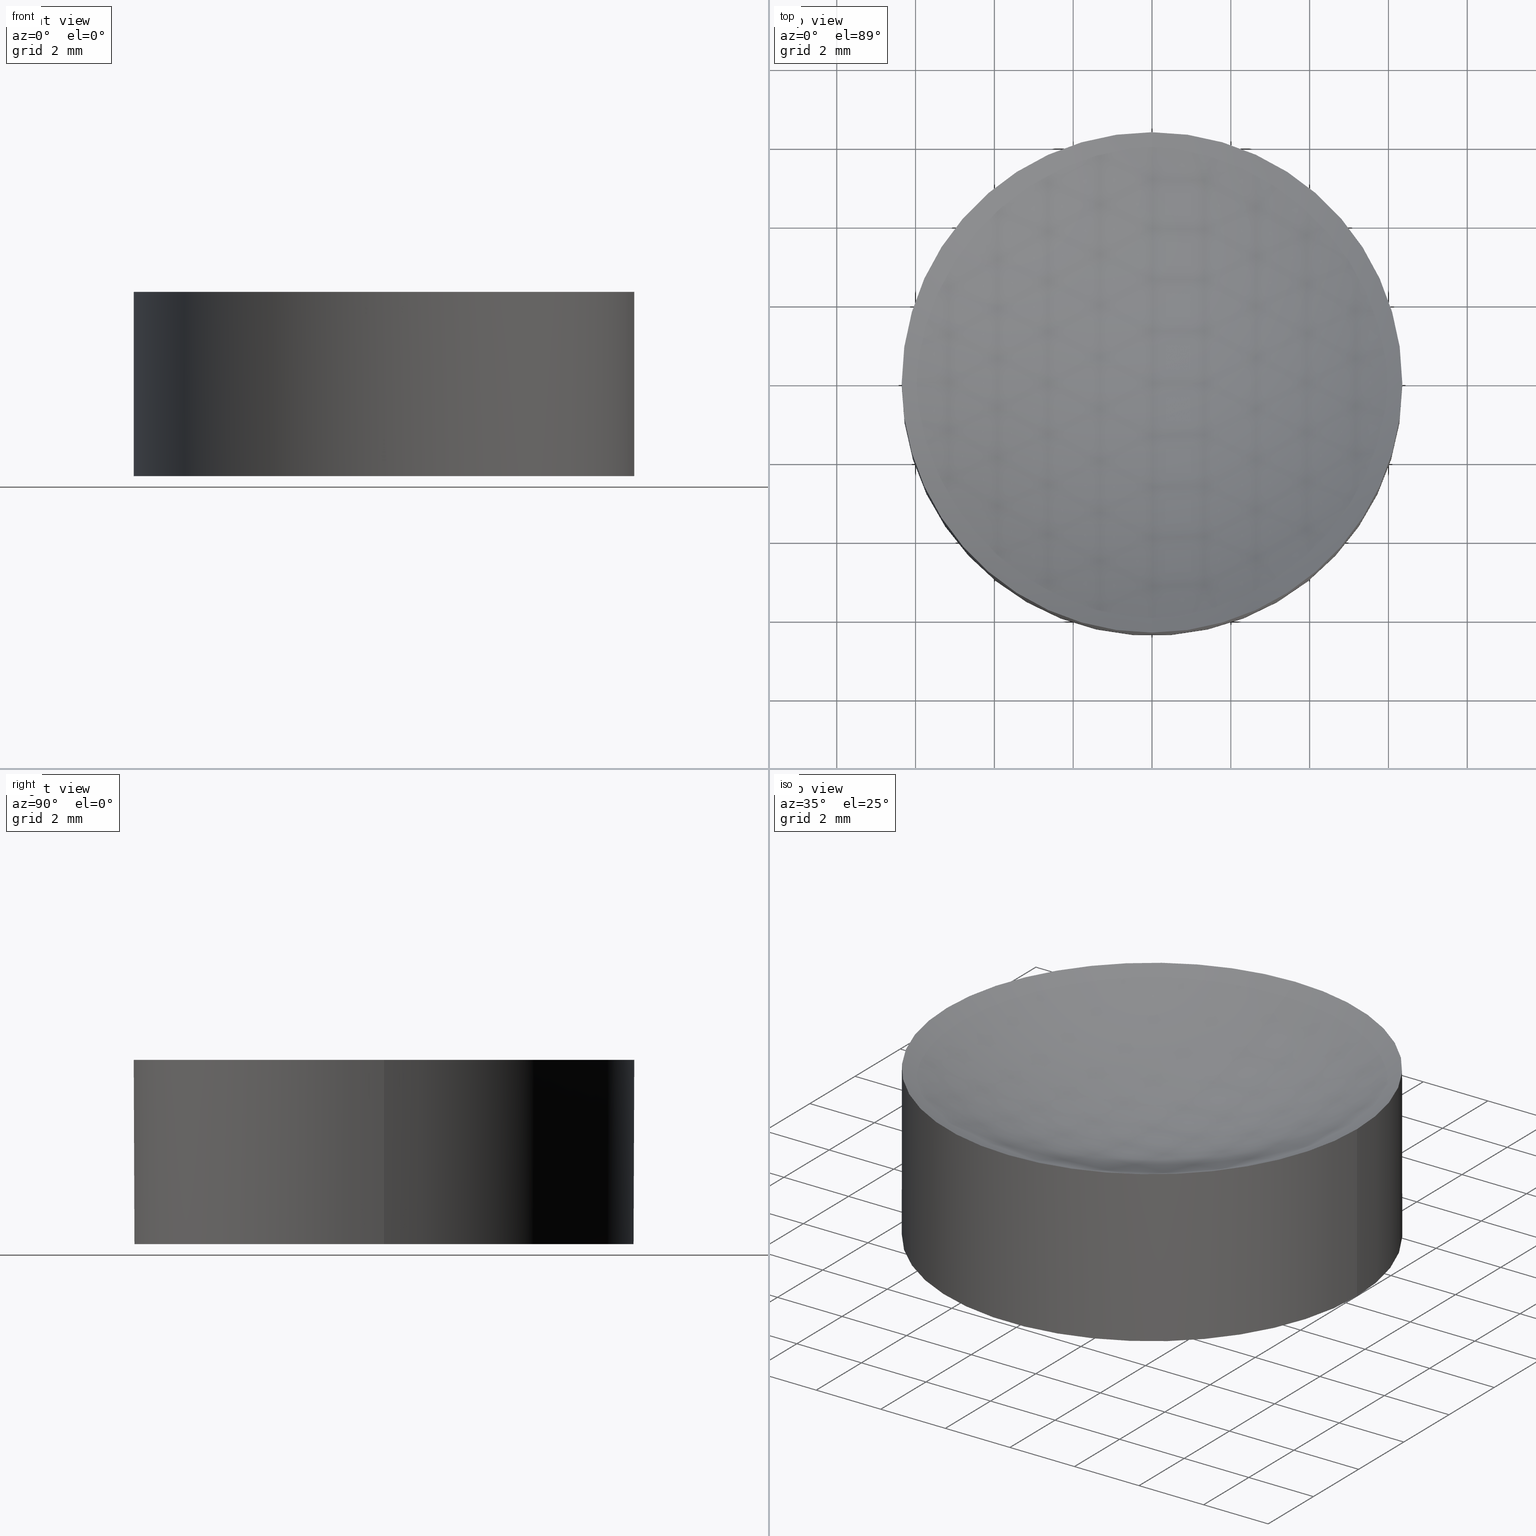
[diagram: canonical four-view strip — front | top / right | iso, engineering-drawing reading convention]
A machine part, canonical four-view strip (front | top / right | iso — engineering-drawing reading convention). The complete STEP part file that produces these views, byte-faithful:
ISO-10303-21;
HEADER;
FILE_DESCRIPTION (( 'STEP AP214' ),
    '1' );
FILE_NAME ('3430-E0W.STEP',
    '2009-12-21T16:59:00',
    ( ' ' ),
    ( ' ' ),
    'SwSTEP 2.0',
    'SolidWorks 2009',
    '' );
FILE_SCHEMA (( 'AUTOMOTIVE_DESIGN' ));
ENDSEC;

DATA;
#1 = PRESENTATION_LAYER_ASSIGNMENT (  '', '', ( #2 ) ) ;
#2 = STYLED_ITEM ( 'NONE', ( #3 ), #106 ) ;
#3 = PRESENTATION_STYLE_ASSIGNMENT (( #4 ) ) ;
#4 = SURFACE_STYLE_USAGE ( .BOTH. , #5 ) ;
#5 = SURFACE_SIDE_STYLE ('',( #6 ) ) ;
#6 = SURFACE_STYLE_FILL_AREA ( #7 ) ;
#7 = FILL_AREA_STYLE ('',( #149 ) ) ;
#8 = COLOUR_RGB ( '',0.9568627450980391500, 0.9490196078431372100, 0.9607843137254902200 ) ;
#9 = FACE_OUTER_BOUND ( 'NONE', #157, .T. ) ;
#10 = DIRECTION ( 'NONE',  ( 1.000000000000000000, 0.0000000000000000000, 0.0000000000000000000 ) ) ;
#11 = DIRECTION ( 'NONE',  ( -0.0000000000000000000, -0.0000000000000000000, 1.000000000000000000 ) ) ;
#12 = CARTESIAN_POINT ( 'NONE',  ( 0.0000000000000000000, 0.0000000000000000000, 2.338553407212048600 ) ) ;
#13 = AXIS2_PLACEMENT_3D ( 'NONE', #12, #11, #10 ) ;
#14 = DIRECTION ( 'NONE',  ( 1.000000000000000000, 0.0000000000000000000, 0.0000000000000000000 ) ) ;
#15 = DIRECTION ( 'NONE',  ( -0.0000000000000000000, -0.0000000000000000000, 1.000000000000000000 ) ) ;
#16 = CARTESIAN_POINT ( 'NONE',  ( 0.0000000000000000000, 0.0000000000000000000, 8.178599863217275600 ) ) ;
#17 = ORIENTED_EDGE ( 'NONE', *, *, #29, .T. ) ;
#18 = UNCERTAINTY_MEASURE_WITH_UNIT (LENGTH_MEASURE( 1.000000000000000100E-005 ), #131, 'distance_accuracy_value', 'NONE');
#19 = ORIENTED_EDGE ( 'NONE', *, *, #20, .F. ) ;
#20 = EDGE_CURVE ( 'NONE', #39, #96, #141, .T. ) ;
#21 = MANIFOLD_SOLID_BREP ( 'NONE', #107 ) ;
#22 = VERTEX_POINT ( 'NONE', #119 ) ;
#23 = ORIENTED_EDGE ( 'NONE', *, *, #105, .T. ) ;
#24 = DIRECTION ( 'NONE',  ( 1.000000000000000000, 0.0000000000000000000, 0.0000000000000000000 ) ) ;
#25 = DIRECTION ( 'NONE',  ( -0.0000000000000000000, -0.0000000000000000000, 1.000000000000000000 ) ) ;
#26 = CARTESIAN_POINT ( 'NONE',  ( 0.0000000000000000000, 0.0000000000000000000, -2.338553407212048600 ) ) ;
#27 = AXIS2_PLACEMENT_3D ( 'NONE', #26, #25, #24 ) ;
#28 = CARTESIAN_POINT ( 'NONE',  ( 0.0000000000000000000, 7.874218855077883200E-016, 0.6614465927879519300 ) ) ;
#29 = EDGE_CURVE ( 'NONE', #49, #163, #118, .T. ) ;
#30 =( NAMED_UNIT ( * ) PLANE_ANGLE_UNIT ( ) SI_UNIT ( $, .RADIAN. ) );
#31 =( LENGTH_UNIT ( ) NAMED_UNIT ( * ) SI_UNIT ( .MILLI., .METRE. ) );
#32 = DIRECTION ( 'NONE',  ( 0.0000000000000000000, 0.0000000000000000000, -1.000000000000000000 ) ) ;
#33 = DIRECTION ( 'NONE',  ( 1.000000000000000000, 0.0000000000000000000, 0.0000000000000000000 ) ) ;
#34 = CARTESIAN_POINT ( 'NONE',  ( 0.0000000000000000000, 0.0000000000000000000, 13.52144659278794800 ) ) ;
#35 = AXIS2_PLACEMENT_3D ( 'NONE', #34, #33, #32 ) ;
#36 = COLOUR_RGB ( '',0.7960784313725489700, 0.8235294117647058400, 0.9372549019607843100 ) ;
#37 = UNCERTAINTY_MEASURE_WITH_UNIT (LENGTH_MEASURE( 1.000000000000000100E-005 ), #31, 'distance_accuracy_value', 'NONE');
#38 =( NAMED_UNIT ( * ) SI_UNIT ( $, .STERADIAN. ) SOLID_ANGLE_UNIT ( ) );
#39 = VERTEX_POINT ( 'NONE', #28 ) ;
#40 = STYLED_ITEM ( 'NONE', ( #41 ), #21 ) ;
#41 = PRESENTATION_STYLE_ASSIGNMENT (( #42 ) ) ;
#42 = SURFACE_STYLE_USAGE ( .BOTH. , #43 ) ;
#43 = SURFACE_SIDE_STYLE ('',( #44 ) ) ;
#44 = SURFACE_STYLE_FILL_AREA ( #45 ) ;
#45 = FILL_AREA_STYLE ('',( #137 ) ) ;
#46 =( NAMED_UNIT ( * ) PLANE_ANGLE_UNIT ( ) SI_UNIT ( $, .RADIAN. ) );
#47 =( LENGTH_UNIT ( ) NAMED_UNIT ( * ) SI_UNIT ( .MILLI., .METRE. ) );
#48 = MECHANICAL_DESIGN_GEOMETRIC_PRESENTATION_REPRESENTATION (  '', ( #2 ), #91 ) ;
#49 = VERTEX_POINT ( 'NONE', #146 ) ;
#50 = ORIENTED_EDGE ( 'NONE', *, *, #52, .T. ) ;
#51 = ORIENTED_EDGE ( 'NONE', *, *, #52, .F. ) ;
#52 = EDGE_CURVE ( 'NONE', #96, #156, #115, .T. ) ;
#53 = ORIENTED_EDGE ( 'NONE', *, *, #143, .T. ) ;
#54 = ORIENTED_EDGE ( 'NONE', *, *, #105, .F. ) ;
#55 = MECHANICAL_DESIGN_GEOMETRIC_PRESENTATION_REPRESENTATION (  '', ( #57 ), #136 ) ;
#56 = PRESENTATION_LAYER_ASSIGNMENT (  '', '', ( #57 ) ) ;
#57 = STYLED_ITEM ( 'NONE', ( #58 ), #92 ) ;
#58 = PRESENTATION_STYLE_ASSIGNMENT (( #59 ) ) ;
#59 = SURFACE_STYLE_USAGE ( .BOTH. , #60 ) ;
#60 = SURFACE_SIDE_STYLE ('',( #61 ) ) ;
#61 = SURFACE_STYLE_FILL_AREA ( #62 ) ;
#62 = FILL_AREA_STYLE ('',( #109 ) ) ;
#63 =( NAMED_UNIT ( * ) PLANE_ANGLE_UNIT ( ) SI_UNIT ( $, .RADIAN. ) );
#64 =( LENGTH_UNIT ( ) NAMED_UNIT ( * ) SI_UNIT ( .MILLI., .METRE. ) );
#65 = MECHANICAL_DESIGN_GEOMETRIC_PRESENTATION_REPRESENTATION (  '', ( #67 ), #168 ) ;
#66 = PRESENTATION_LAYER_ASSIGNMENT (  '', '', ( #67 ) ) ;
#67 = STYLED_ITEM ( 'NONE', ( #68 ), #139 ) ;
#68 = PRESENTATION_STYLE_ASSIGNMENT (( #69 ) ) ;
#69 = SURFACE_STYLE_USAGE ( .BOTH. , #70 ) ;
#70 = SURFACE_SIDE_STYLE ('',( #71 ) ) ;
#71 = SURFACE_STYLE_FILL_AREA ( #72 ) ;
#72 = FILL_AREA_STYLE ('',( #80 ) ) ;
#73 = COLOUR_RGB ( '',0.9568627450980391500, 0.9490196078431372100, 0.9607843137254902200 ) ;
#74 = FACE_OUTER_BOUND ( 'NONE', #98, .T. ) ;
#75 = DIRECTION ( 'NONE',  ( 1.000000000000000000, 0.0000000000000000000, 0.0000000000000000000 ) ) ;
#76 = DIRECTION ( 'NONE',  ( -0.0000000000000000000, -0.0000000000000000000, 1.000000000000000000 ) ) ;
#77 = CARTESIAN_POINT ( 'NONE',  ( 0.0000000000000000000, 0.0000000000000000000, 2.338553407212048600 ) ) ;
#78 = AXIS2_PLACEMENT_3D ( 'NONE', #77, #76, #75 ) ;
#79 = CIRCLE ( 'NONE', #78, 6.349999999999998800 ) ;
#80 = FILL_AREA_STYLE_COLOUR ( '', #73 ) ;
#81 = DIRECTION ( 'NONE',  ( 1.000000000000000000, 0.0000000000000000000, 0.0000000000000000000 ) ) ;
#82 = DIRECTION ( 'NONE',  ( -0.0000000000000000000, -0.0000000000000000000, 1.000000000000000000 ) ) ;
#83 = CARTESIAN_POINT ( 'NONE',  ( 0.0000000000000000000, 0.0000000000000000000, 2.338553407212048600 ) ) ;
#84 = AXIS2_PLACEMENT_3D ( 'NONE', #83, #82, #81 ) ;
#85 = CIRCLE ( 'NONE', #84, 6.349999999999998800 ) ;
#86 = DIRECTION ( 'NONE',  ( 1.000000000000000000, 0.0000000000000000000, 0.0000000000000000000 ) ) ;
#87 = DIRECTION ( 'NONE',  ( 0.0000000000000000000, -0.0000000000000000000, 1.000000000000000000 ) ) ;
#88 = CARTESIAN_POINT ( 'NONE',  ( 0.0000000000000000000, 5.510910596163088600E-016, -2.338553407212049100 ) ) ;
#89 = AXIS2_PLACEMENT_3D ( 'NONE', #88, #87, #86 ) ;
#90 = PLANE ( 'NONE',  #89 ) ;
#91 =( GEOMETRIC_REPRESENTATION_CONTEXT ( 3 ) GLOBAL_UNCERTAINTY_ASSIGNED_CONTEXT ( ( #116 ) ) GLOBAL_UNIT_ASSIGNED_CONTEXT ( ( #47, #46, #117 ) ) REPRESENTATION_CONTEXT ( 'NONE', 'WORKASPACE' ) );
#92 = ADVANCED_FACE ( 'NONE', ( #145 ), #93, .T. ) ;
#93 = CYLINDRICAL_SURFACE ( 'NONE', #95, 6.349999999999999600 ) ;
#94 = CARTESIAN_POINT ( 'NONE',  ( 0.0000000000000000000, 6.349999999999999600, 2.338553407212049100 ) ) ;
#95 = AXIS2_PLACEMENT_3D ( 'NONE', #16, #15, #14 ) ;
#96 = VERTEX_POINT ( 'NONE', #94 ) ;
#97 = EDGE_CURVE ( 'NONE', #163, #49, #129, .T. ) ;
#98 = EDGE_LOOP ( 'NONE', ( #103, #104, #50, #23 ) ) ;
#99 = ORIENTED_EDGE ( 'NONE', *, *, #100, .T. ) ;
#100 = EDGE_CURVE ( 'NONE', #39, #154, #124, .T. ) ;
#101 = EDGE_LOOP ( 'NONE', ( #19, #99, #155, #138 ) ) ;
#102 = ORIENTED_EDGE ( 'NONE', *, *, #120, .F. ) ;
#103 = ORIENTED_EDGE ( 'NONE', *, *, #100, .F. ) ;
#104 = ORIENTED_EDGE ( 'NONE', *, *, #20, .T. ) ;
#105 = EDGE_CURVE ( 'NONE', #156, #154, #148, .T. ) ;
#106 = ADVANCED_FACE ( 'NONE', ( #9 ), #90, .F. ) ;
#107 = CLOSED_SHELL ( 'NONE', ( #160, #144, #139, #106, #92 ) ) ;
#108 = ORIENTED_EDGE ( 'NONE', *, *, #97, .T. ) ;
#109 = FILL_AREA_STYLE_COLOUR ( '', #110 ) ;
#110 = COLOUR_RGB ( '',0.9568627450980391500, 0.9490196078431372100, 0.9607843137254902200 ) ;
#111 = DIRECTION ( 'NONE',  ( 1.000000000000000000, 0.0000000000000000000, 0.0000000000000000000 ) ) ;
#112 = DIRECTION ( 'NONE',  ( -0.0000000000000000000, -0.0000000000000000000, 1.000000000000000000 ) ) ;
#113 = CARTESIAN_POINT ( 'NONE',  ( 0.0000000000000000000, 0.0000000000000000000, 2.338553407212048600 ) ) ;
#114 = AXIS2_PLACEMENT_3D ( 'NONE', #113, #112, #111 ) ;
#115 = CIRCLE ( 'NONE', #114, 6.349999999999998800 ) ;
#116 = UNCERTAINTY_MEASURE_WITH_UNIT (LENGTH_MEASURE( 1.000000000000000100E-005 ), #47, 'distance_accuracy_value', 'NONE');
#117 =( NAMED_UNIT ( * ) SI_UNIT ( $, .STERADIAN. ) SOLID_ANGLE_UNIT ( ) );
#118 = CIRCLE ( 'NONE', #27, 6.350000000000000500 ) ;
#119 = CARTESIAN_POINT ( 'NONE',  ( 6.349999999999998800, 0.0000000000000000000, 2.338553407212048600 ) ) ;
#120 = EDGE_CURVE ( 'NONE', #22, #96, #85, .T. ) ;
#121 = ORIENTED_EDGE ( 'NONE', *, *, #143, .F. ) ;
#122 = EDGE_CURVE ( 'NONE', #154, #22, #79, .T. ) ;
#123 =( NAMED_UNIT ( * ) SI_UNIT ( $, .STERADIAN. ) SOLID_ANGLE_UNIT ( ) );
#124 = CIRCLE ( 'NONE', #153, 12.85999999999999600 ) ;
#125 = DIRECTION ( 'NONE',  ( 1.000000000000000000, 0.0000000000000000000, 0.0000000000000000000 ) ) ;
#126 = DIRECTION ( 'NONE',  ( -0.0000000000000000000, -0.0000000000000000000, 1.000000000000000000 ) ) ;
#127 = CARTESIAN_POINT ( 'NONE',  ( 0.0000000000000000000, 0.0000000000000000000, -2.338553407212048600 ) ) ;
#128 = AXIS2_PLACEMENT_3D ( 'NONE', #127, #126, #125 ) ;
#129 = CIRCLE ( 'NONE', #128, 6.350000000000000500 ) ;
#130 =( NAMED_UNIT ( * ) PLANE_ANGLE_UNIT ( ) SI_UNIT ( $, .RADIAN. ) );
#131 =( LENGTH_UNIT ( ) NAMED_UNIT ( * ) SI_UNIT ( .MILLI., .METRE. ) );
#132 = MECHANICAL_DESIGN_GEOMETRIC_PRESENTATION_REPRESENTATION (  '', ( #40 ), #147 ) ;
#133 = PRESENTATION_LAYER_ASSIGNMENT (  '', '', ( #40 ) ) ;
#134 = EDGE_LOOP ( 'NONE', ( #135, #108, #53, #142, #54 ) ) ;
#135 = ORIENTED_EDGE ( 'NONE', *, *, #161, .F. ) ;
#136 =( GEOMETRIC_REPRESENTATION_CONTEXT ( 3 ) GLOBAL_UNCERTAINTY_ASSIGNED_CONTEXT ( ( #37 ) ) GLOBAL_UNIT_ASSIGNED_CONTEXT ( ( #31, #30, #38 ) ) REPRESENTATION_CONTEXT ( 'NONE', 'WORKASPACE' ) );
#137 = FILL_AREA_STYLE_COLOUR ( '', #36 ) ;
#138 = ORIENTED_EDGE ( 'NONE', *, *, #120, .T. ) ;
#139 = ADVANCED_FACE ( 'NONE', ( #74 ), #169, .F. ) ;
#140 = EDGE_LOOP ( 'NONE', ( #17, #162, #51, #102, #121 ) ) ;
#141 = CIRCLE ( 'NONE', #35, 12.85999999999999600 ) ;
#142 = ORIENTED_EDGE ( 'NONE', *, *, #122, .F. ) ;
#143 = EDGE_CURVE ( 'NONE', #49, #22, #195, .T. ) ;
#144 = ADVANCED_FACE ( 'NONE', ( #182 ), #223, .F. ) ;
#145 = FACE_OUTER_BOUND ( 'NONE', #134, .T. ) ;
#146 = CARTESIAN_POINT ( 'NONE',  ( 6.350000000000000500, 0.0000000000000000000, -2.338553407212048600 ) ) ;
#147 =( GEOMETRIC_REPRESENTATION_CONTEXT ( 3 ) GLOBAL_UNCERTAINTY_ASSIGNED_CONTEXT ( ( #18 ) ) GLOBAL_UNIT_ASSIGNED_CONTEXT ( ( #131, #130, #123 ) ) REPRESENTATION_CONTEXT ( 'NONE', 'WORKASPACE' ) );
#148 = CIRCLE ( 'NONE', #13, 6.349999999999998800 ) ;
#149 = FILL_AREA_STYLE_COLOUR ( '', #8 ) ;
#150 = DIRECTION ( 'NONE',  ( -1.224606353822377300E-016, -1.000000000000000000, 0.0000000000000000000 ) ) ;
#151 = DIRECTION ( 'NONE',  ( -1.000000000000000000, 1.224606353822377300E-016, 0.0000000000000000000 ) ) ;
#152 = CARTESIAN_POINT ( 'NONE',  ( 0.0000000000000000000, 0.0000000000000000000, 13.52144659278794800 ) ) ;
#153 = AXIS2_PLACEMENT_3D ( 'NONE', #152, #151, #150 ) ;
#154 = VERTEX_POINT ( 'NONE', #227 ) ;
#155 = ORIENTED_EDGE ( 'NONE', *, *, #122, .T. ) ;
#156 = VERTEX_POINT ( 'NONE', #217 ) ;
#157 = EDGE_LOOP ( 'NONE', ( #158, #159 ) ) ;
#158 = ORIENTED_EDGE ( 'NONE', *, *, #29, .F. ) ;
#159 = ORIENTED_EDGE ( 'NONE', *, *, #97, .F. ) ;
#160 = ADVANCED_FACE ( 'NONE', ( #216 ), #248, .T. ) ;
#161 = EDGE_CURVE ( 'NONE', #163, #156, #190, .T. ) ;
#162 = ORIENTED_EDGE ( 'NONE', *, *, #161, .T. ) ;
#163 = VERTEX_POINT ( 'NONE', #228 ) ;
#164 = DIRECTION ( 'NONE',  ( 0.0000000000000000000, 1.000000000000000000, 0.0000000000000000000 ) ) ;
#165 =( LENGTH_UNIT ( ) NAMED_UNIT ( * ) SI_UNIT ( .MILLI., .METRE. ) );
#166 = MECHANICAL_DESIGN_GEOMETRIC_PRESENTATION_REPRESENTATION (  '', ( #245 ), #167 ) ;
#167 =( GEOMETRIC_REPRESENTATION_CONTEXT ( 3 ) GLOBAL_UNCERTAINTY_ASSIGNED_CONTEXT ( ( #179 ) ) GLOBAL_UNIT_ASSIGNED_CONTEXT ( ( #165, #208, #180 ) ) REPRESENTATION_CONTEXT ( 'NONE', 'WORKASPACE' ) );
#168 =( GEOMETRIC_REPRESENTATION_CONTEXT ( 3 ) GLOBAL_UNCERTAINTY_ASSIGNED_CONTEXT ( ( #186 ) ) GLOBAL_UNIT_ASSIGNED_CONTEXT ( ( #64, #63, #178 ) ) REPRESENTATION_CONTEXT ( 'NONE', 'WORKASPACE' ) );
#169 = SPHERICAL_SURFACE ( 'NONE', #221, 12.85999999999999600 ) ;
#170 =( NAMED_UNIT ( * ) PLANE_ANGLE_UNIT ( ) SI_UNIT ( $, .RADIAN. ) );
#171 =( LENGTH_UNIT ( ) NAMED_UNIT ( * ) SI_UNIT ( .MILLI., .METRE. ) );
#172 = MECHANICAL_DESIGN_GEOMETRIC_PRESENTATION_REPRESENTATION (  '', ( #174 ), #187 ) ;
#173 = PRESENTATION_LAYER_ASSIGNMENT (  '', '', ( #174 ) ) ;
#174 = STYLED_ITEM ( 'NONE', ( #200 ), #207 ) ;
#175 = UNCERTAINTY_MEASURE_WITH_UNIT (LENGTH_MEASURE( 1.000000000000000100E-005 ), #196, 'distance_accuracy_value', 'NONE');
#176 =( NAMED_UNIT ( * ) SI_UNIT ( $, .STERADIAN. ) SOLID_ANGLE_UNIT ( ) );
#177 = DIRECTION ( 'NONE',  ( -1.000000000000000000, 0.0000000000000000000, 0.0000000000000000000 ) ) ;
#178 =( NAMED_UNIT ( * ) SI_UNIT ( $, .STERADIAN. ) SOLID_ANGLE_UNIT ( ) );
#179 = UNCERTAINTY_MEASURE_WITH_UNIT (LENGTH_MEASURE( 1.000000000000000100E-005 ), #165, 'distance_accuracy_value', 'NONE');
#180 =( NAMED_UNIT ( * ) SI_UNIT ( $, .STERADIAN. ) SOLID_ANGLE_UNIT ( ) );
#181 =( NAMED_UNIT ( * ) PLANE_ANGLE_UNIT ( ) SI_UNIT ( $, .RADIAN. ) );
#182 = FACE_OUTER_BOUND ( 'NONE', #101, .T. ) ;
#183 = CARTESIAN_POINT ( 'NONE',  ( 0.0000000000000000000, 0.0000000000000000000, 13.52144659278794800 ) ) ;
#184 =( GEOMETRIC_REPRESENTATION_CONTEXT ( 3 ) GLOBAL_UNCERTAINTY_ASSIGNED_CONTEXT ( ( #185 ) ) GLOBAL_UNIT_ASSIGNED_CONTEXT ( ( #220, #219, #218 ) ) REPRESENTATION_CONTEXT ( 'NONE', 'WORKASPACE' ) );
#185 = UNCERTAINTY_MEASURE_WITH_UNIT (LENGTH_MEASURE( 1.000000000000000100E-005 ), #220, 'distance_accuracy_value', 'NONE');
#186 = UNCERTAINTY_MEASURE_WITH_UNIT (LENGTH_MEASURE( 1.000000000000000100E-005 ), #64, 'distance_accuracy_value', 'NONE');
#187 =( GEOMETRIC_REPRESENTATION_CONTEXT ( 3 ) GLOBAL_UNCERTAINTY_ASSIGNED_CONTEXT ( ( #188 ) ) GLOBAL_UNIT_ASSIGNED_CONTEXT ( ( #171, #170, #189 ) ) REPRESENTATION_CONTEXT ( 'NONE', 'WORKASPACE' ) );
#188 = UNCERTAINTY_MEASURE_WITH_UNIT (LENGTH_MEASURE( 1.000000000000000100E-005 ), #171, 'distance_accuracy_value', 'NONE');
#189 =( NAMED_UNIT ( * ) SI_UNIT ( $, .STERADIAN. ) SOLID_ANGLE_UNIT ( ) );
#190 = LINE ( 'NONE', #232, #231 ) ;
#191 = DIRECTION ( 'NONE',  ( 1.000000000000000000, 0.0000000000000000000, 0.0000000000000000000 ) ) ;
#192 = DIRECTION ( 'NONE',  ( -0.0000000000000000000, -0.0000000000000000000, 1.000000000000000000 ) ) ;
#193 = CARTESIAN_POINT ( 'NONE',  ( 0.0000000000000000000, 0.0000000000000000000, 8.178599863217275600 ) ) ;
#194 = AXIS2_PLACEMENT_3D ( 'NONE', #193, #192, #191 ) ;
#195 = LINE ( 'NONE', #239, #238 ) ;
#196 =( LENGTH_UNIT ( ) NAMED_UNIT ( * ) SI_UNIT ( .MILLI., .METRE. ) );
#197 = MECHANICAL_DESIGN_GEOMETRIC_PRESENTATION_REPRESENTATION (  '', ( #199 ), #249 ) ;
#198 = PRESENTATION_LAYER_ASSIGNMENT (  '', '', ( #199 ) ) ;
#199 = STYLED_ITEM ( 'NONE', ( #209 ), #160 ) ;
#200 = PRESENTATION_STYLE_ASSIGNMENT (( #201 ) ) ;
#201 = SURFACE_STYLE_USAGE ( .BOTH. , #202 ) ;
#202 = SURFACE_SIDE_STYLE ('',( #203 ) ) ;
#203 = SURFACE_STYLE_FILL_AREA ( #204 ) ;
#204 = FILL_AREA_STYLE ('',( #205 ) ) ;
#205 = FILL_AREA_STYLE_COLOUR ( '', #206 ) ;
#206 = COLOUR_RGB ( '',0.7960784313725489700, 0.8235294117647058400, 0.9372549019607843100 ) ;
#207 = ADVANCED_BREP_SHAPE_REPRESENTATION ( '3430-E0W', ( #21, #235 ), #184 ) ;
#208 =( NAMED_UNIT ( * ) PLANE_ANGLE_UNIT ( ) SI_UNIT ( $, .RADIAN. ) );
#209 = PRESENTATION_STYLE_ASSIGNMENT (( #210 ) ) ;
#210 = SURFACE_STYLE_USAGE ( .BOTH. , #211 ) ;
#211 = SURFACE_SIDE_STYLE ('',( #212 ) ) ;
#212 = SURFACE_STYLE_FILL_AREA ( #213 ) ;
#213 = FILL_AREA_STYLE ('',( #214 ) ) ;
#214 = FILL_AREA_STYLE_COLOUR ( '', #215 ) ;
#215 = COLOUR_RGB ( '',0.9568627450980391500, 0.9490196078431372100, 0.9607843137254902200 ) ;
#216 = FACE_OUTER_BOUND ( 'NONE', #140, .T. ) ;
#217 = CARTESIAN_POINT ( 'NONE',  ( -6.349999999999998800, 7.776250346772094400E-016, 2.338553407212048600 ) ) ;
#218 =( NAMED_UNIT ( * ) SI_UNIT ( $, .STERADIAN. ) SOLID_ANGLE_UNIT ( ) );
#219 =( NAMED_UNIT ( * ) PLANE_ANGLE_UNIT ( ) SI_UNIT ( $, .RADIAN. ) );
#220 =( LENGTH_UNIT ( ) NAMED_UNIT ( * ) SI_UNIT ( .MILLI., .METRE. ) );
#221 = AXIS2_PLACEMENT_3D ( 'NONE', #183, #177, #164 ) ;
#222 = CARTESIAN_POINT ( 'NONE',  ( 0.0000000000000000000, 0.0000000000000000000, 13.52144659278794800 ) ) ;
#223 = SPHERICAL_SURFACE ( 'NONE', #226, 12.85999999999999600 ) ;
#224 = DIRECTION ( 'NONE',  ( 0.0000000000000000000, 1.000000000000000000, 0.0000000000000000000 ) ) ;
#225 = DIRECTION ( 'NONE',  ( -1.000000000000000000, 0.0000000000000000000, 0.0000000000000000000 ) ) ;
#226 = AXIS2_PLACEMENT_3D ( 'NONE', #222, #225, #224 ) ;
#227 = CARTESIAN_POINT ( 'NONE',  ( -7.776250346772096400E-016, -6.349999999999999600, 2.338553407212049100 ) ) ;
#228 = CARTESIAN_POINT ( 'NONE',  ( -6.350000000000001400, 7.776250346772097400E-016, -2.338553407212048600 ) ) ;
#229 = CARTESIAN_POINT ( 'NONE',  ( 0.0000000000000000000, 0.0000000000000000000, 0.0000000000000000000 ) ) ;
#230 = DIRECTION ( 'NONE',  ( -0.0000000000000000000, -0.0000000000000000000, 1.000000000000000000 ) ) ;
#231 = VECTOR ( 'NONE', #230, 1000.000000000000000 ) ;
#232 = CARTESIAN_POINT ( 'NONE',  ( -6.349999999999999600, 7.776250346772095400E-016, 8.178599863217275600 ) ) ;
#233 = DIRECTION ( 'NONE',  ( 1.000000000000000000, 0.0000000000000000000, 0.0000000000000000000 ) ) ;
#234 = DIRECTION ( 'NONE',  ( 0.0000000000000000000, 0.0000000000000000000, 1.000000000000000000 ) ) ;
#235 = AXIS2_PLACEMENT_3D ( 'NONE', #229, #234, #233 ) ;
#236 = FILL_AREA_STYLE_COLOUR ( '', #243 ) ;
#237 = DIRECTION ( 'NONE',  ( -0.0000000000000000000, -0.0000000000000000000, 1.000000000000000000 ) ) ;
#238 = VECTOR ( 'NONE', #237, 1000.000000000000000 ) ;
#239 = CARTESIAN_POINT ( 'NONE',  ( 6.349999999999999600, 0.0000000000000000000, 8.178599863217275600 ) ) ;
#240 = SURFACE_SIDE_STYLE ('',( #241 ) ) ;
#241 = SURFACE_STYLE_FILL_AREA ( #242 ) ;
#242 = FILL_AREA_STYLE ('',( #236 ) ) ;
#243 = COLOUR_RGB ( '',0.9568627450980391500, 0.9490196078431372100, 0.9607843137254902200 ) ;
#244 = PRESENTATION_LAYER_ASSIGNMENT (  '', '', ( #245 ) ) ;
#245 = STYLED_ITEM ( 'NONE', ( #246 ), #144 ) ;
#246 = PRESENTATION_STYLE_ASSIGNMENT (( #247 ) ) ;
#247 = SURFACE_STYLE_USAGE ( .BOTH. , #240 ) ;
#248 = CYLINDRICAL_SURFACE ( 'NONE', #194, 6.349999999999999600 ) ;
#249 =( GEOMETRIC_REPRESENTATION_CONTEXT ( 3 ) GLOBAL_UNCERTAINTY_ASSIGNED_CONTEXT ( ( #175 ) ) GLOBAL_UNIT_ASSIGNED_CONTEXT ( ( #196, #181, #176 ) ) REPRESENTATION_CONTEXT ( 'NONE', 'WORKASPACE' ) );
#250 = PRODUCT_DEFINITION_SHAPE ( 'NONE', 'NONE',  #261 ) ;
#251 = PRODUCT ( '3430-E0W', '3430-E0W', '', ( #252 ) ) ;
#252 = PRODUCT_CONTEXT ( 'NONE', #258, 'mechanical' ) ;
#253 = APPLICATION_PROTOCOL_DEFINITION ( 'draft international standard', 'automotive_design', 1998, #258 ) ;
#254 = SHAPE_DEFINITION_REPRESENTATION ( #250, #207 ) ;
#255 = PRODUCT_DEFINITION_CONTEXT ( 'detailed design', #257, 'design' ) ;
#256 = APPLICATION_PROTOCOL_DEFINITION ( 'draft international standard', 'automotive_design', 1998, #257 ) ;
#257 = APPLICATION_CONTEXT ( 'automotive_design' ) ;
#258 = APPLICATION_CONTEXT ( 'automotive_design' ) ;
#259 = PRODUCT_RELATED_PRODUCT_CATEGORY ( 'part', '', ( #251 ) ) ;
#260 = PRODUCT_DEFINITION_FORMATION_WITH_SPECIFIED_SOURCE ( 'ANY', '', #251, .NOT_KNOWN. ) ;
#261 = PRODUCT_DEFINITION ( 'UNKNOWN', '', #260, #255 ) ;
ENDSEC;
END-ISO-10303-21;
